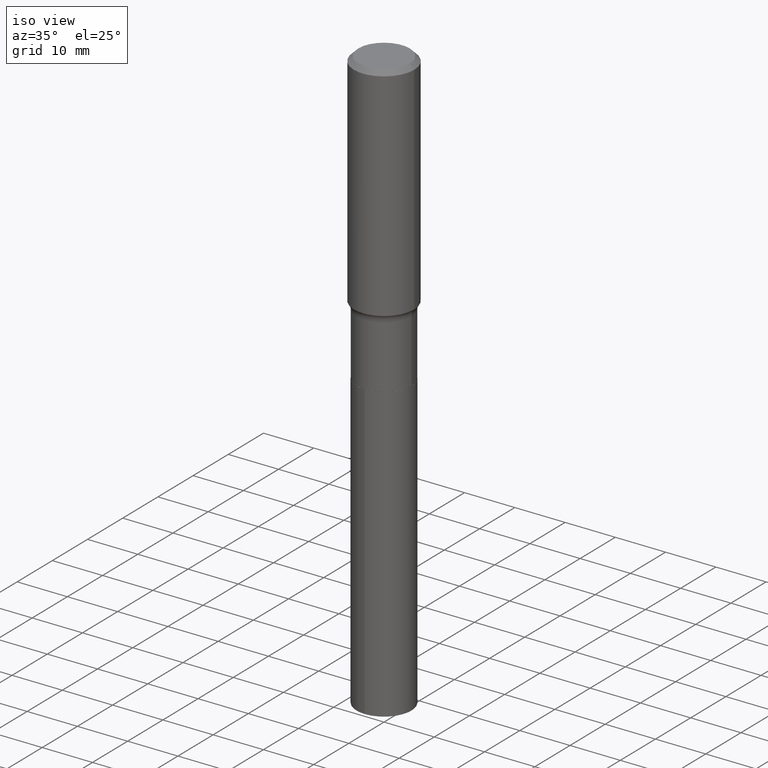
[diagram: clean part render]
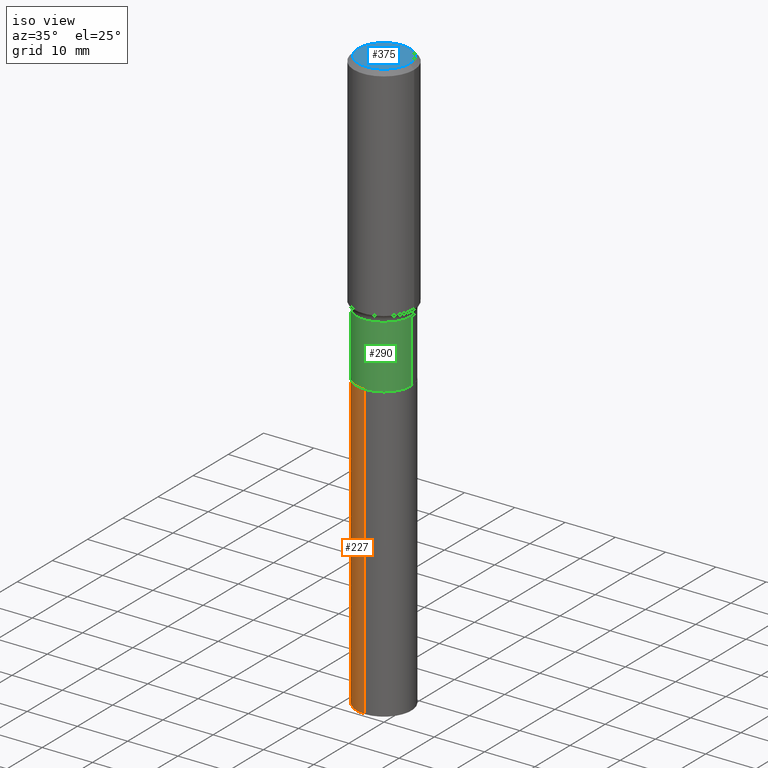
[diagram: same view with three faces highlighted in distinct colors, each labeled with its STEP entity id]
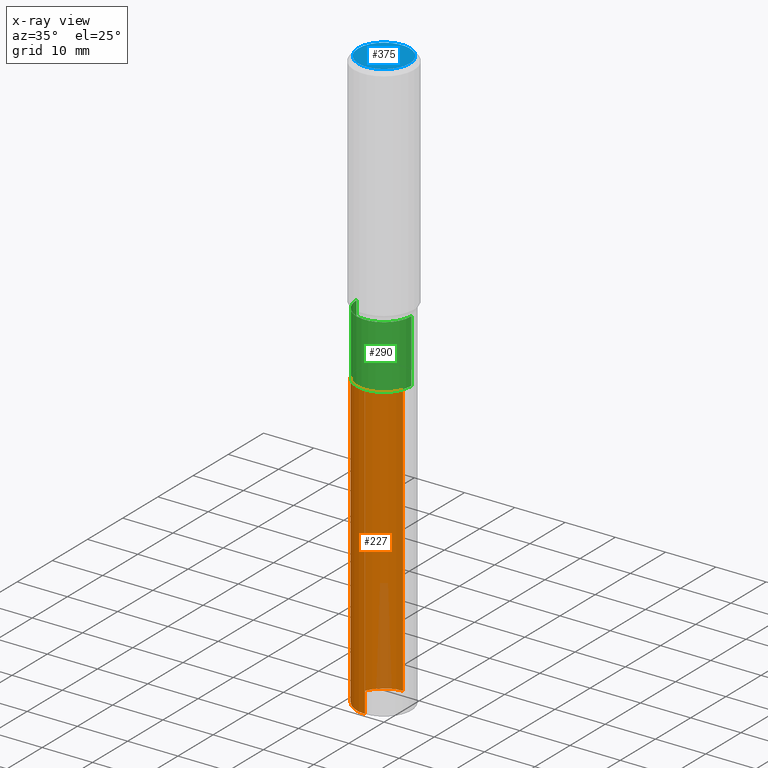
[diagram: x-ray of the same camera — body ghosted, the three highlighted faces saturated]
A machine part, iso view with three faces highlighted in distinct colors.
The next image is the same camera in x-ray (body ghosted, the three faces saturated) — at least one of them is partly hidden behind the body in this view.
Their STEP definitions:

[orange] entity #227 — the highlighted cylindrical surface (edge-blend (fillet) strip) has radius 5.4496 mm, axis along (-0, 0, 1).
#6 = CARTESIAN_POINT ( 'NONE',  ( -1.498194642497532588E-15, -0.2145500000000079566, -2.279499999999998749 ) ) ;
#28 = CARTESIAN_POINT ( 'NONE',  ( -1.498194642497532588E-15, -0.2145500000000079566, -2.279499999999998749 ) ) ;
#64 = AXIS2_PLACEMENT_3D ( 'NONE', #164, #129, #281 ) ;
#88 = DIRECTION ( 'NONE',  ( -2.445499818882154926E-29, 3.491436926895881594E-15, 1.000000000000000000 ) ) ;
#92 = LINE ( 'NONE', #276, #377 ) ;
#96 = VECTOR ( 'NONE', #168, 39.37007874015748143 ) ;
#112 = FACE_OUTER_BOUND ( 'NONE', #267, .T. ) ;
#116 = DIRECTION ( 'NONE',  ( -2.445499818882155207E-29, 3.491436926895881594E-15, 1.000000000000000000 ) ) ;
#126 = DIRECTION ( 'NONE',  ( -6.982962677686266711E-15, -1.000000000000000000, 2.546584007144500745E-15 ) ) ;
#129 = DIRECTION ( 'NONE',  ( -2.445499818882155207E-29, 3.491436926895881594E-15, 1.000000000000000000 ) ) ;
#145 = CARTESIAN_POINT ( 'NONE',  ( 1.119555622036104611E-28, -1.598408329452252082E-14, -4.578052644846014374 ) ) ;
#164 = CARTESIAN_POINT ( 'NONE',  ( 5.574446143699018056E-29, -7.958831711892947948E-15, -2.279499999999999638 ) ) ;
#168 = DIRECTION ( 'NONE',  ( -2.445499818882154926E-29, 3.491436926895881594E-15, 1.000000000000000000 ) ) ;
#179 = CIRCLE ( 'NONE', #215, 0.2145499999999999907 ) ;
#182 = DIRECTION ( 'NONE',  ( -2.445499818882155207E-29, 3.491436926895881594E-15, 1.000000000000000000 ) ) ;
#184 = VERTEX_POINT ( 'NONE', #300 ) ;
#188 = CYLINDRICAL_SURFACE ( 'NONE', #409, 0.2145499999999999907 ) ;
#194 = ORIENTED_EDGE ( 'NONE', *, *, #294, .T. ) ;
#215 = AXIS2_PLACEMENT_3D ( 'NONE', #145, #182, #126 ) ;
#227 = ADVANCED_FACE ( 'NONE', ( #112 ), #188, .T. ) ;
#247 = VERTEX_POINT ( 'NONE', #28 ) ;
#260 = CARTESIAN_POINT ( 'NONE',  ( 5.574446143699018056E-29, -7.958831711892947948E-15, -2.279499999999999638 ) ) ;
#264 = VERTEX_POINT ( 'NONE', #452 ) ;
#267 = EDGE_LOOP ( 'NONE', ( #327, #461, #194, #347 ) ) ;
#268 = EDGE_CURVE ( 'NONE', #274, #264, #179, .T. ) ;
#274 = VERTEX_POINT ( 'NONE', #351 ) ;
#276 = CARTESIAN_POINT ( 'NONE',  ( 1.524469439573350498E-15, 0.2145499999999920526, -2.279500000000000526 ) ) ;
#280 = CIRCLE ( 'NONE', #64, 0.2145499999999999907 ) ;
#281 = DIRECTION ( 'NONE',  ( -6.982962677686266711E-15, -1.000000000000000000, 3.819876010716751118E-15 ) ) ;
#294 = EDGE_CURVE ( 'NONE', #264, #247, #383, .T. ) ;
#300 = CARTESIAN_POINT ( 'NONE',  ( 1.524469439573407493E-15, 0.2145499999999920804, -2.279500000000000526 ) ) ;
#327 = ORIENTED_EDGE ( 'NONE', *, *, #336, .F. ) ;
#335 = DIRECTION ( 'NONE',  ( -6.982962677686266711E-15, -1.000000000000000000, 3.819876010716751118E-15 ) ) ;
#336 = EDGE_CURVE ( 'NONE', #274, #184, #92, .T. ) ;
#347 = ORIENTED_EDGE ( 'NONE', *, *, #360, .F. ) ;
#351 = CARTESIAN_POINT ( 'NONE',  ( 1.524469439573406507E-15, 0.2145499999999839758, -4.578052644846015262 ) ) ;
#360 = EDGE_CURVE ( 'NONE', #184, #247, #280, .T. ) ;
#377 = VECTOR ( 'NONE', #88, 39.37007874015748143 ) ;
#383 = LINE ( 'NONE', #6, #96 ) ;
#409 = AXIS2_PLACEMENT_3D ( 'NONE', #260, #116, #335 ) ;
#452 = CARTESIAN_POINT ( 'NONE',  ( -1.498194642497476381E-15, -0.2145500000000159779, -4.578052644846013486 ) ) ;
#461 = ORIENTED_EDGE ( 'NONE', *, *, #268, .T. ) ;

[blue] entity #375 — the highlighted planar face has unit normal (0, -0, -1).
#12 = CARTESIAN_POINT ( 'NONE',  ( -5.008488096090115757E-47, 7.150793614331959538E-33, 2.048068690724057264E-18 ) ) ;
#25 = ORIENTED_EDGE ( 'NONE', *, *, #355, .T. ) ;
#44 = DIRECTION ( 'NONE',  ( 2.438088387897960049E-29, -3.491481338843145188E-15, -1.000000000000000000 ) ) ;
#76 = CARTESIAN_POINT ( 'NONE',  ( 0.2007700000000000040, -1.560767496960719672E-15, 4.096137381458473721E-18 ) ) ;
#84 = FACE_OUTER_BOUND ( 'NONE', #480, .T. ) ;
#117 = VERTEX_POINT ( 'NONE', #76 ) ;
#152 = DIRECTION ( 'NONE',  ( -2.445468806185136597E-29, 3.491481338843145583E-15, 1.000000000000000000 ) ) ;
#153 = CIRCLE ( 'NONE', #434, 0.2007700000000000040 ) ;
#166 = DIRECTION ( 'NONE',  ( -1.000000000000000000, 6.982962677686265922E-15, -4.876176775795935793E-29 ) ) ;
#177 = CARTESIAN_POINT ( 'NONE',  ( -0.2007700000000000040, 1.463821008716677338E-15, 4.096137381438094301E-18 ) ) ;
#187 = EDGE_CURVE ( 'NONE', #456, #117, #153, .T. ) ;
#206 = CARTESIAN_POINT ( 'NONE',  ( -1.001697619218023151E-46, 1.430158722866391908E-32, 4.096137381448114529E-18 ) ) ;
#266 = AXIS2_PLACEMENT_3D ( 'NONE', #206, #349, #321 ) ;
#321 = DIRECTION ( 'NONE',  ( 1.000000000000000000, -6.982962677686266711E-15, 4.876140833081945105E-29 ) ) ;
#333 = AXIS2_PLACEMENT_3D ( 'NONE', #12, #44, #166 ) ;
#349 = DIRECTION ( 'NONE',  ( -2.445468806185136597E-29, 3.491481338843145583E-15, 1.000000000000000000 ) ) ;
#353 = PLANE ( 'NONE',  #333 ) ;
#355 = EDGE_CURVE ( 'NONE', #117, #456, #439, .T. ) ;
#375 = ADVANCED_FACE ( 'NONE', ( #84 ), #353, .F. ) ;
#376 = CARTESIAN_POINT ( 'NONE',  ( -1.001697619218023151E-46, 1.430158722866391908E-32, 4.096137381448114529E-18 ) ) ;
#434 = AXIS2_PLACEMENT_3D ( 'NONE', #376, #152, #454 ) ;
#439 = CIRCLE ( 'NONE', #266, 0.2007700000000000040 ) ;
#454 = DIRECTION ( 'NONE',  ( 1.000000000000000000, -6.982962677686266711E-15, 4.876140833081945105E-29 ) ) ;
#456 = VERTEX_POINT ( 'NONE', #177 ) ;
#473 = ORIENTED_EDGE ( 'NONE', *, *, #187, .T. ) ;
#480 = EDGE_LOOP ( 'NONE', ( #473, #25 ) ) ;

[green] entity #290 — the highlighted cylindrical surface (edge-blend (fillet) strip) has radius 5.4496 mm, axis along (-0, 0, 1).
#3 = CARTESIAN_POINT ( 'NONE',  ( 0.2145499999999999630, -1.498194642497588202E-15, 1.046183727247017934E-29 ) ) ;
#5 = VERTEX_POINT ( 'NONE', #217 ) ;
#9 = EDGE_CURVE ( 'NONE', #457, #191, #365, .T. ) ;
#10 = CARTESIAN_POINT ( 'NONE',  ( 0.000000000000000000, 0.000000000000000000, 0.000000000000000000 ) ) ;
#23 = CARTESIAN_POINT ( 'NONE',  ( -0.2145499999999999907, -5.571966381625396973E-15, -2.278999999999999471 ) ) ;
#41 = DIRECTION ( 'NONE',  ( 1.000000000000000000, -6.982962677686269077E-15, 0.000000000000000000 ) ) ;
#50 = FACE_OUTER_BOUND ( 'NONE', #425, .T. ) ;
#56 = AXIS2_PLACEMENT_3D ( 'NONE', #10, #90, #284 ) ;
#63 = CARTESIAN_POINT ( 'NONE',  ( 0.2145499999999999907, -9.455280613721116027E-15, -2.278999999999999471 ) ) ;
#70 = CARTESIAN_POINT ( 'NONE',  ( 4.367607287846652814E-29, -6.235785671173856083E-15, -1.785999999999999366 ) ) ;
#81 = CARTESIAN_POINT ( 'NONE',  ( 5.573223409295925255E-29, -7.957085971223527233E-15, -2.278999999999999471 ) ) ;
#83 = VERTEX_POINT ( 'NONE', #63 ) ;
#90 = DIRECTION ( 'NONE',  ( -2.445468806185136597E-29, 3.491481338843145583E-15, 1.000000000000000000 ) ) ;
#99 = ORIENTED_EDGE ( 'NONE', *, *, #235, .F. ) ;
#142 = VECTOR ( 'NONE', #156, 39.37007874015748143 ) ;
#156 = DIRECTION ( 'NONE',  ( -2.445468806185136877E-29, 3.491481338843145188E-15, 1.000000000000000000 ) ) ;
#191 = VERTEX_POINT ( 'NONE', #415 ) ;
#197 = ORIENTED_EDGE ( 'NONE', *, *, #430, .T. ) ;
#198 = LINE ( 'NONE', #3, #142 ) ;
#201 = AXIS2_PLACEMENT_3D ( 'NONE', #70, #222, #368 ) ;
#217 = CARTESIAN_POINT ( 'NONE',  ( 0.2145499999999999352, -7.733980313671444089E-15, -1.785999999999999366 ) ) ;
#222 = DIRECTION ( 'NONE',  ( -2.445468806185136597E-29, 3.491481338843145583E-15, 1.000000000000000000 ) ) ;
#235 = EDGE_CURVE ( 'NONE', #191, #5, #295, .T. ) ;
#284 = DIRECTION ( 'NONE',  ( 1.000000000000000000, -6.982962677686266711E-15, 4.876176775795936353E-29 ) ) ;
#290 = ADVANCED_FACE ( 'NONE', ( #50 ), #319, .T. ) ;
#295 = CIRCLE ( 'NONE', #201, 0.2145499999999999352 ) ;
#296 = CARTESIAN_POINT ( 'NONE',  ( -0.2145499999999999630, 1.524469439573294686E-15, -1.055357523614189967E-29 ) ) ;
#309 = CIRCLE ( 'NONE', #446, 0.2145499999999999907 ) ;
#319 = CYLINDRICAL_SURFACE ( 'NONE', #56, 0.2145499999999999630 ) ;
#337 = ORIENTED_EDGE ( 'NONE', *, *, #9, .F. ) ;
#365 = LINE ( 'NONE', #296, #445 ) ;
#368 = DIRECTION ( 'NONE',  ( 1.000000000000000000, -6.982962677686266711E-15, 0.000000000000000000 ) ) ;
#372 = ORIENTED_EDGE ( 'NONE', *, *, #424, .T. ) ;
#380 = DIRECTION ( 'NONE',  ( -2.445468806185136597E-29, 3.491481338843145583E-15, 1.000000000000000000 ) ) ;
#415 = CARTESIAN_POINT ( 'NONE',  ( -0.2145499999999999352, -5.571966381625397761E-15, -1.785999999999999366 ) ) ;
#424 = EDGE_CURVE ( 'NONE', #457, #83, #309, .T. ) ;
#425 = EDGE_LOOP ( 'NONE', ( #337, #372, #197, #99 ) ) ;
#430 = EDGE_CURVE ( 'NONE', #83, #5, #198, .T. ) ;
#443 = DIRECTION ( 'NONE',  ( -2.445468806185136877E-29, 3.491481338843145188E-15, 1.000000000000000000 ) ) ;
#445 = VECTOR ( 'NONE', #443, 39.37007874015748143 ) ;
#446 = AXIS2_PLACEMENT_3D ( 'NONE', #81, #380, #41 ) ;
#457 = VERTEX_POINT ( 'NONE', #23 ) ;